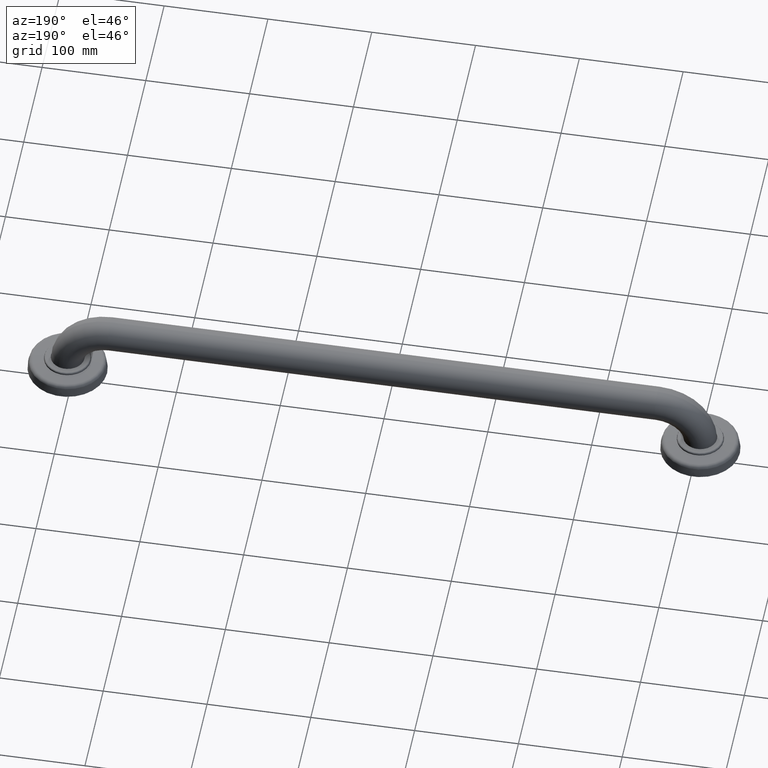
[diagram: clean part render]
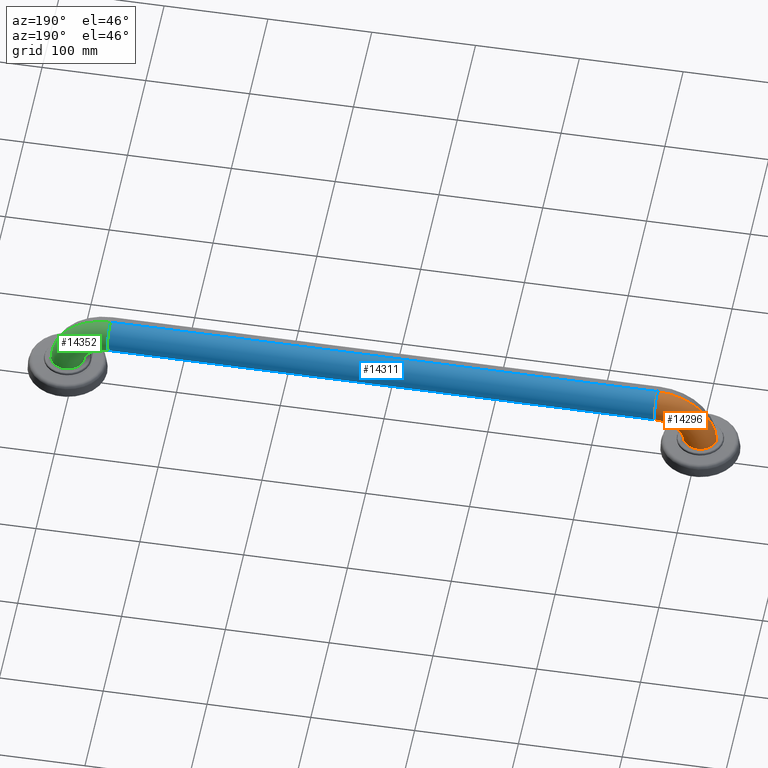
[diagram: same view with three faces highlighted in distinct colors, each labeled with its STEP entity id]
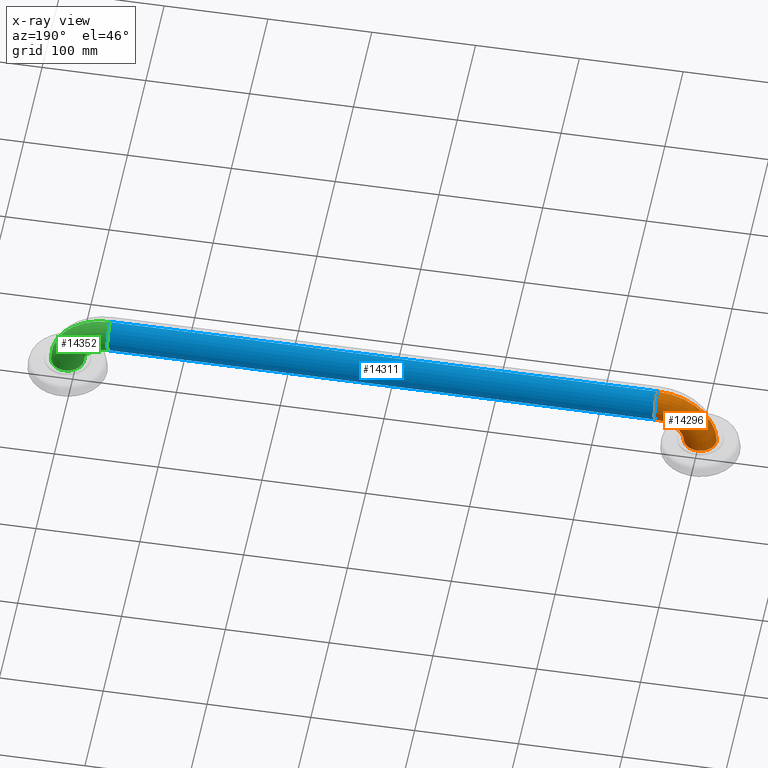
[diagram: x-ray of the same camera — body ghosted, the three highlighted faces saturated]
A machine part, auxiliary view with three faces highlighted in distinct colors.
The next image is the same camera in x-ray (body ghosted, the three faces saturated) — at least one of them is partly hidden behind the body in this view.
Their STEP definitions:

[orange] entity #14296 — the highlighted toroidal blend (fillet) surface has major radius 41.275 mm and minor (blend) radius 15.875 mm.
#14000=CARTESIAN_POINT('',(-1.0375E1,0.E0,-1.625E0));
#14001=DIRECTION('',(0.E0,1.E0,0.E0));
#14002=DIRECTION('',(-1.E0,0.E0,0.E0));
#14003=AXIS2_PLACEMENT_3D('',#14000,#14001,#14002);
#14005=CARTESIAN_POINT('',(-1.2E1,0.E0,-1.625E0));
#14006=DIRECTION('',(0.E0,0.E0,1.E0));
#14007=DIRECTION('',(1.E0,0.E0,0.E0));
#14008=AXIS2_PLACEMENT_3D('',#14005,#14006,#14007);
#14010=CARTESIAN_POINT('',(-1.0375E1,0.E0,-1.625E0));
#14011=DIRECTION('',(0.E0,1.E0,0.E0));
#14012=DIRECTION('',(-1.E0,0.E0,0.E0));
#14013=AXIS2_PLACEMENT_3D('',#14010,#14011,#14012);
#14015=CARTESIAN_POINT('',(-1.0375E1,0.E0,0.E0));
#14016=DIRECTION('',(1.E0,0.E0,0.E0));
#14017=DIRECTION('',(0.E0,0.E0,-1.E0));
#14018=AXIS2_PLACEMENT_3D('',#14015,#14016,#14017);
#14183=CARTESIAN_POINT('',(-1.1375E1,0.E0,-1.625E0));
#14184=CARTESIAN_POINT('',(-1.2625E1,0.E0,-1.625E0));
#14185=VERTEX_POINT('',#14183);
#14186=VERTEX_POINT('',#14184);
#14191=CARTESIAN_POINT('',(-1.0375E1,0.E0,-6.25E-1));
#14192=CARTESIAN_POINT('',(-1.0375E1,0.E0,6.25E-1));
#14193=VERTEX_POINT('',#14191);
#14194=VERTEX_POINT('',#14192);
#14284=CARTESIAN_POINT('',(-1.0375E1,0.E0,-1.625E0));
#14285=DIRECTION('',(0.E0,1.E0,0.E0));
#14286=DIRECTION('',(1.E0,0.E0,0.E0));
#14287=AXIS2_PLACEMENT_3D('',#14284,#14285,#14286);
#14288=TOROIDAL_SURFACE('',#14287,1.625E0,6.25E-1);
#14289=ORIENTED_EDGE('',*,*,#14249,.F.);
#14290=ORIENTED_EDGE('',*,*,#14279,.T.);
#14292=ORIENTED_EDGE('',*,*,#14291,.T.);
#14293=ORIENTED_EDGE('',*,*,#14275,.F.);
#14294=EDGE_LOOP('',(#14289,#14290,#14292,#14293));
#14295=FACE_OUTER_BOUND('',#14294,.F.);
#14296=ADVANCED_FACE('',(#14295),#14288,.T.);
#14004=CIRCLE('',#14003,2.25E0);
#14009=CIRCLE('',#14008,6.25E-1);
#14014=CIRCLE('',#14013,1.E0);
#14019=CIRCLE('',#14018,6.25E-1);
#14249=EDGE_CURVE('',#14185,#14186,#14009,.T.);
#14275=EDGE_CURVE('',#14186,#14194,#14004,.T.);
#14279=EDGE_CURVE('',#14185,#14193,#14014,.T.);
#14291=EDGE_CURVE('',#14193,#14194,#14019,.T.);

[blue] entity #14311 — the highlighted cylindrical surface (edge-blend (fillet) strip) has radius 15.875 mm, axis along (1, 0, 0).
#14015=CARTESIAN_POINT('',(-1.0375E1,0.E0,0.E0));
#14016=DIRECTION('',(1.E0,0.E0,0.E0));
#14017=DIRECTION('',(0.E0,0.E0,-1.E0));
#14018=AXIS2_PLACEMENT_3D('',#14015,#14016,#14017);
#14020=DIRECTION('',(1.E0,0.E0,0.E0));
#14021=VECTOR('',#14020,2.075E1);
#14022=CARTESIAN_POINT('',(-1.0375E1,0.E0,-6.25E-1));
#14023=LINE('',#14022,#14021);
#14029=DIRECTION('',(1.E0,0.E0,0.E0));
#14030=VECTOR('',#14029,2.075E1);
#14031=CARTESIAN_POINT('',(-1.0375E1,0.E0,6.25E-1));
#14032=LINE('',#14031,#14030);
#14043=CARTESIAN_POINT('',(1.0375E1,0.E0,0.E0));
#14044=DIRECTION('',(1.E0,0.E0,0.E0));
#14045=DIRECTION('',(0.E0,0.E0,-1.E0));
#14046=AXIS2_PLACEMENT_3D('',#14043,#14044,#14045);
#14191=CARTESIAN_POINT('',(-1.0375E1,0.E0,-6.25E-1));
#14192=CARTESIAN_POINT('',(-1.0375E1,0.E0,6.25E-1));
#14193=VERTEX_POINT('',#14191);
#14194=VERTEX_POINT('',#14192);
#14199=CARTESIAN_POINT('',(1.0375E1,0.E0,-6.25E-1));
#14200=CARTESIAN_POINT('',(1.0375E1,0.E0,6.25E-1));
#14201=VERTEX_POINT('',#14199);
#14202=VERTEX_POINT('',#14200);
#14297=CARTESIAN_POINT('',(-1.0375E1,0.E0,0.E0));
#14298=DIRECTION('',(1.E0,0.E0,0.E0));
#14299=DIRECTION('',(0.E0,0.E0,-1.E0));
#14300=AXIS2_PLACEMENT_3D('',#14297,#14298,#14299);
#14301=CYLINDRICAL_SURFACE('',#14300,6.25E-1);
#14302=ORIENTED_EDGE('',*,*,#14291,.F.);
#14304=ORIENTED_EDGE('',*,*,#14303,.T.);
#14306=ORIENTED_EDGE('',*,*,#14305,.T.);
#14308=ORIENTED_EDGE('',*,*,#14307,.F.);
#14309=EDGE_LOOP('',(#14302,#14304,#14306,#14308));
#14310=FACE_OUTER_BOUND('',#14309,.F.);
#14311=ADVANCED_FACE('',(#14310),#14301,.T.);
#14019=CIRCLE('',#14018,6.25E-1);
#14047=CIRCLE('',#14046,6.25E-1);
#14291=EDGE_CURVE('',#14193,#14194,#14019,.T.);
#14303=EDGE_CURVE('',#14193,#14201,#14023,.T.);
#14305=EDGE_CURVE('',#14201,#14202,#14047,.T.);
#14307=EDGE_CURVE('',#14194,#14202,#14032,.T.);

[green] entity #14352 — the highlighted toroidal blend (fillet) surface has major radius 41.275 mm and minor (blend) radius 15.875 mm.
#14038=CARTESIAN_POINT('',(1.0375E1,0.E0,-1.625E0));
#14039=DIRECTION('',(0.E0,1.E0,0.E0));
#14040=DIRECTION('',(0.E0,0.E0,1.E0));
#14041=AXIS2_PLACEMENT_3D('',#14038,#14039,#14040);
#14043=CARTESIAN_POINT('',(1.0375E1,0.E0,0.E0));
#14044=DIRECTION('',(1.E0,0.E0,0.E0));
#14045=DIRECTION('',(0.E0,0.E0,-1.E0));
#14046=AXIS2_PLACEMENT_3D('',#14043,#14044,#14045);
#14048=CARTESIAN_POINT('',(1.0375E1,0.E0,-1.625E0));
#14049=DIRECTION('',(0.E0,1.E0,0.E0));
#14050=DIRECTION('',(0.E0,0.E0,1.E0));
#14051=AXIS2_PLACEMENT_3D('',#14048,#14049,#14050);
#14053=CARTESIAN_POINT('',(1.2E1,0.E0,-1.625E0));
#14054=DIRECTION('',(0.E0,0.E0,-1.E0));
#14055=DIRECTION('',(-1.E0,0.E0,0.E0));
#14056=AXIS2_PLACEMENT_3D('',#14053,#14054,#14055);
#14199=CARTESIAN_POINT('',(1.0375E1,0.E0,-6.25E-1));
#14200=CARTESIAN_POINT('',(1.0375E1,0.E0,6.25E-1));
#14201=VERTEX_POINT('',#14199);
#14202=VERTEX_POINT('',#14200);
#14207=CARTESIAN_POINT('',(1.1375E1,0.E0,-1.625E0));
#14208=CARTESIAN_POINT('',(1.2625E1,0.E0,-1.625E0));
#14209=VERTEX_POINT('',#14207);
#14210=VERTEX_POINT('',#14208);
#14340=CARTESIAN_POINT('',(1.0375E1,0.E0,-1.625E0));
#14341=DIRECTION('',(0.E0,1.E0,0.E0));
#14342=DIRECTION('',(0.E0,0.E0,-1.E0));
#14343=AXIS2_PLACEMENT_3D('',#14340,#14341,#14342);
#14344=TOROIDAL_SURFACE('',#14343,1.625E0,6.25E-1);
#14345=ORIENTED_EDGE('',*,*,#14305,.F.);
#14346=ORIENTED_EDGE('',*,*,#14335,.T.);
#14348=ORIENTED_EDGE('',*,*,#14347,.T.);
#14349=ORIENTED_EDGE('',*,*,#14331,.F.);
#14350=EDGE_LOOP('',(#14345,#14346,#14348,#14349));
#14351=FACE_OUTER_BOUND('',#14350,.F.);
#14352=ADVANCED_FACE('',(#14351),#14344,.T.);
#14042=CIRCLE('',#14041,2.25E0);
#14047=CIRCLE('',#14046,6.25E-1);
#14052=CIRCLE('',#14051,1.E0);
#14057=CIRCLE('',#14056,6.25E-1);
#14305=EDGE_CURVE('',#14201,#14202,#14047,.T.);
#14331=EDGE_CURVE('',#14202,#14210,#14042,.T.);
#14335=EDGE_CURVE('',#14201,#14209,#14052,.T.);
#14347=EDGE_CURVE('',#14209,#14210,#14057,.T.);